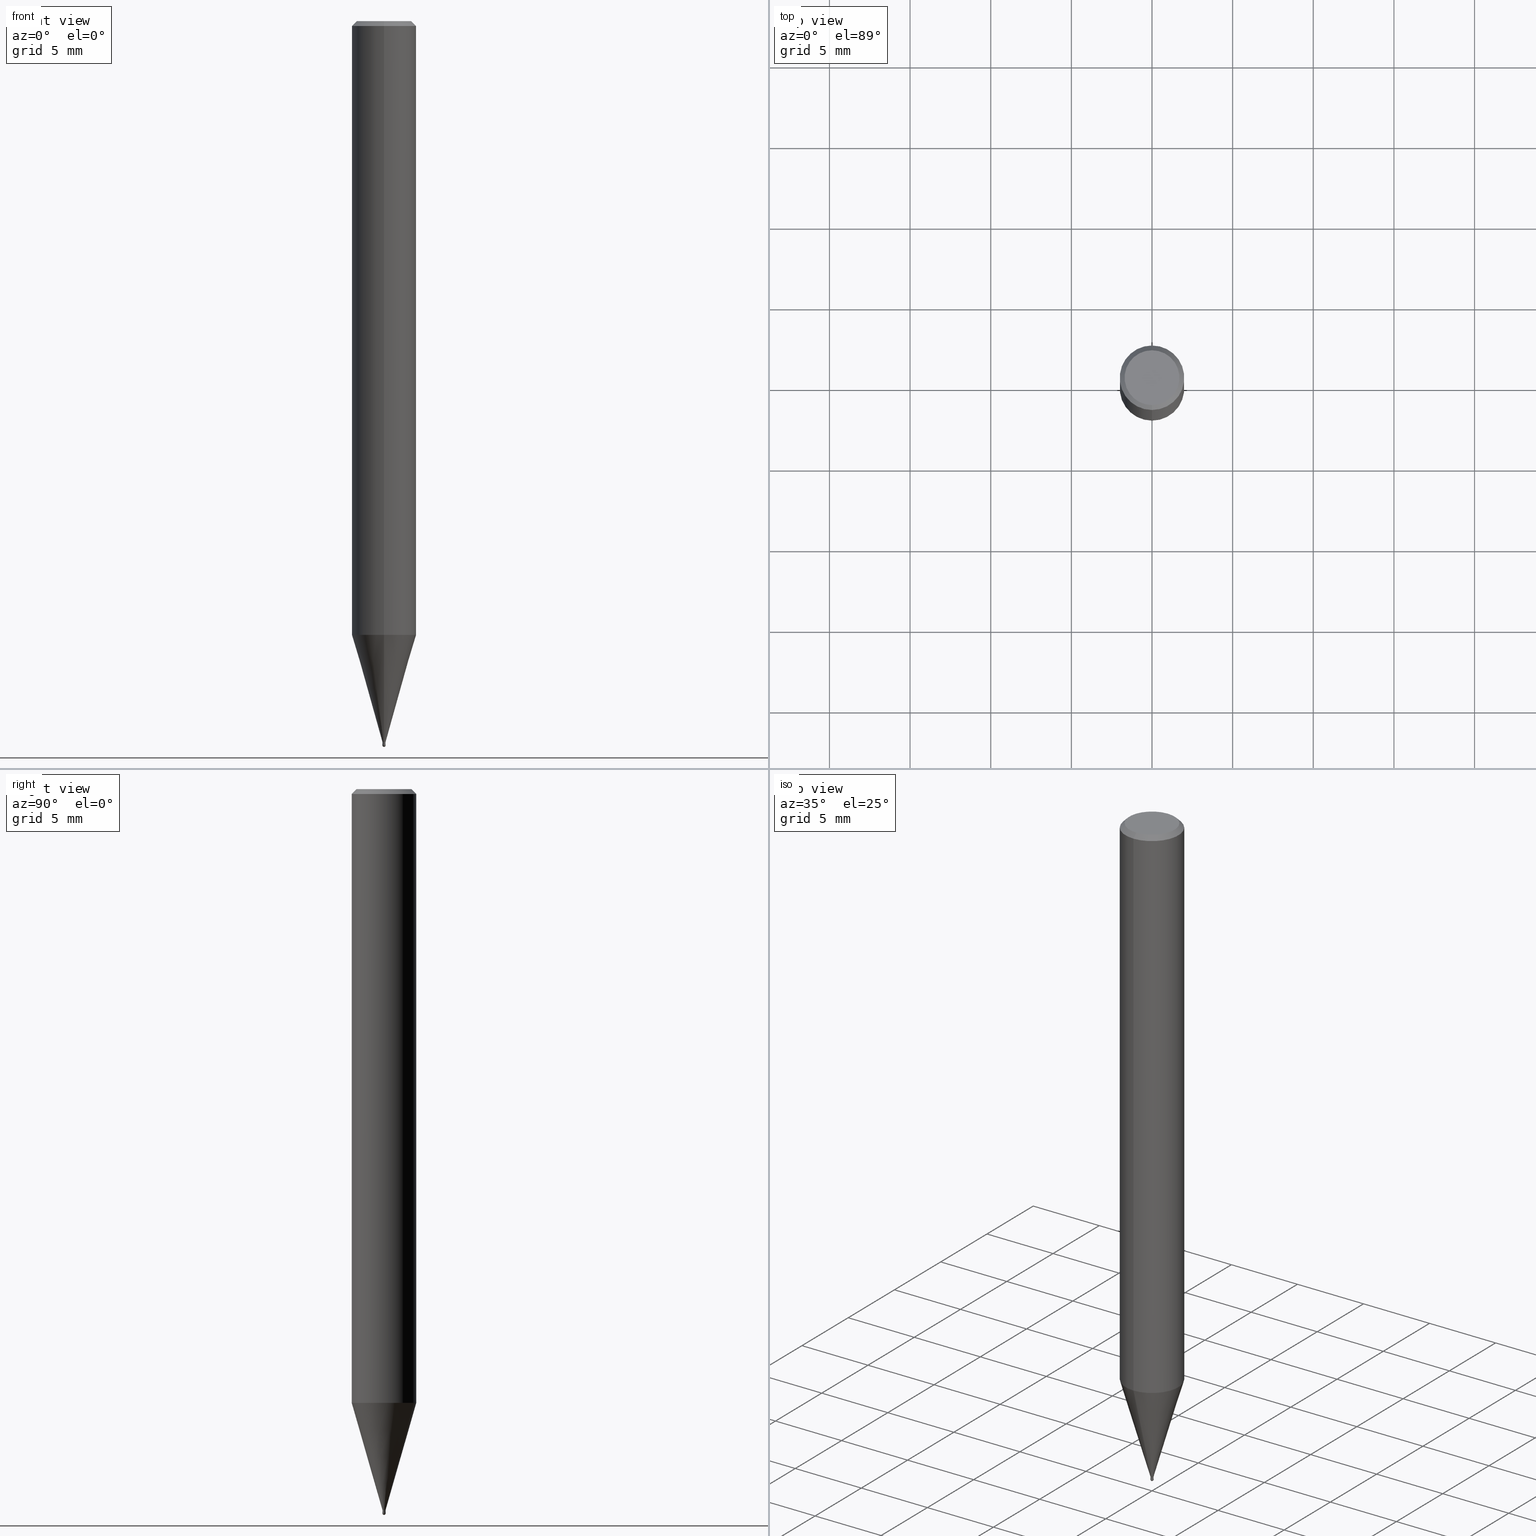
[diagram: canonical four-view strip — front | top / right | iso, engineering-drawing reading convention]
A machine part, canonical four-view strip (front | top / right | iso — engineering-drawing reading convention). The complete STEP part file that produces these views, byte-faithful:
ISO-10303-21;
HEADER;
FILE_DESCRIPTION(('no description'),'unknown implementation level');
FILE_NAME('HSLB2002-003-Huellk.stp','  ',('CIMSOURCE GmbH'),('CADClick - KiM GmbH - www.kimweb.de'),'unknown preprocess','ACIS','unknown authorization');
FILE_SCHEMA(('automotive_design'));
ENDSEC;
DATA;
#1=MECHANICAL_DESIGN_GEOMETRIC_PRESENTATION_REPRESENTATION(' ',(#14,#15,#16,#17,#18,#19,#20,#21,#22,#23,#24,#25,#26,#27,#28,#29,#30,#31,#32,#33,#34,#35,#36,#37,#38,#39,#40,#41,#42,#43,#44,#45,#46,#47,#48,#49,#50,#51,#52,#53,#54,#55,#56,#57,#58,#59,#60,#61,#62,#63,#64,#65,#66,#67,#68,#69,#70,#71,#72,#73,#74),#10);
#2=PRODUCT_DEFINITION_CONTEXT('',#75,'design');
#3=APPLICATION_PROTOCOL_DEFINITION('INTERNATIONAL STANDARD','automotive_design',1994,#75);
#4=PRODUCT_CATEGORY_RELATIONSHIP('NONE','NONE',#76,#77);
#5=SHAPE_DEFINITION_REPRESENTATION(#78,#79);
#6=PRODUCT_DEFINITION_CONTEXT('',#80,'design');
#7=APPLICATION_PROTOCOL_DEFINITION('INTERNATIONAL STANDARD','automotive_design',1994,#80);
#8=PRODUCT_CATEGORY_RELATIONSHIP('NONE','NONE',#81,#82);
#9=SHAPE_DEFINITION_REPRESENTATION(#83,#84);
#10= (GEOMETRIC_REPRESENTATION_CONTEXT(3)GLOBAL_UNCERTAINTY_ASSIGNED_CONTEXT((#87))GLOBAL_UNIT_ASSIGNED_CONTEXT((#89,#90,#91))REPRESENTATION_CONTEXT('NONE','WORKSPACE'));
#14=STYLED_ITEM('',(#93),#94);
#15=STYLED_ITEM('',(#95),#96);
#16=STYLED_ITEM('',(#97),#98);
#17=STYLED_ITEM('',(#99),#100);
#18=STYLED_ITEM('',(#101),#102);
#19=STYLED_ITEM('',(#103),#104);
#20=STYLED_ITEM('',(#105),#106);
#21=STYLED_ITEM('',(#107),#108);
#22=STYLED_ITEM('',(#109),#110);
#23=STYLED_ITEM('',(#111),#112);
#24=STYLED_ITEM('',(#113),#114);
#25=STYLED_ITEM('',(#115),#116);
#26=STYLED_ITEM('',(#117),#118);
#27=STYLED_ITEM('',(#119),#120);
#28=STYLED_ITEM('',(#121),#122);
#29=STYLED_ITEM('',(#123),#124);
#30=STYLED_ITEM('',(#125),#126);
#31=STYLED_ITEM('',(#127),#128);
#32=STYLED_ITEM('',(#129),#130);
#33=STYLED_ITEM('',(#131),#132);
#34=STYLED_ITEM('',(#133),#134);
#35=STYLED_ITEM('',(#135),#136);
#36=STYLED_ITEM('',(#137),#138);
#37=STYLED_ITEM('',(#139),#140);
#38=STYLED_ITEM('',(#141),#142);
#39=STYLED_ITEM('',(#143),#144);
#40=STYLED_ITEM('',(#145),#146);
#41=STYLED_ITEM('',(#147),#148);
#42=STYLED_ITEM('',(#149),#150);
#43=STYLED_ITEM('',(#151),#152);
#44=STYLED_ITEM('',(#153),#154);
#45=STYLED_ITEM('',(#155),#156);
#46=STYLED_ITEM('',(#157),#158);
#47=STYLED_ITEM('',(#159),#160);
#48=STYLED_ITEM('',(#161),#162);
#49=STYLED_ITEM('',(#163),#164);
#50=STYLED_ITEM('',(#165),#166);
#51=STYLED_ITEM('',(#167),#168);
#52=STYLED_ITEM('',(#169),#170);
#53=STYLED_ITEM('',(#171),#172);
#54=STYLED_ITEM('',(#173),#174);
#55=STYLED_ITEM('',(#175),#176);
#56=STYLED_ITEM('',(#177),#178);
#57=STYLED_ITEM('',(#179),#180);
#58=STYLED_ITEM('',(#181),#182);
#59=STYLED_ITEM('',(#183),#184);
#60=STYLED_ITEM('',(#185),#186);
#61=STYLED_ITEM('',(#187),#188);
#62=STYLED_ITEM('',(#189),#190);
#63=STYLED_ITEM('',(#191),#192);
#64=STYLED_ITEM('',(#193),#194);
#65=STYLED_ITEM('',(#195),#196);
#66=STYLED_ITEM('',(#197),#198);
#67=STYLED_ITEM('',(#199),#200);
#68=STYLED_ITEM('',(#201),#202);
#69=STYLED_ITEM('',(#203),#204);
#70=STYLED_ITEM('',(#205),#206);
#71=STYLED_ITEM('',(#207),#208);
#72=STYLED_ITEM('',(#209),#210);
#73=STYLED_ITEM('',(#211),#212);
#74=STYLED_ITEM('',(#213),#214);
#75=APPLICATION_CONTEXT(' ');
#76=PRODUCT_CATEGORY('part','NONE');
#77=PRODUCT_RELATED_PRODUCT_CATEGORY('detail',' ',(#215));
#78=PRODUCT_DEFINITION_SHAPE('NONE','NONE',#216);
#79=ADVANCED_BREP_SHAPE_REPRESENTATION('1',(#144,#217),#10);
#80=APPLICATION_CONTEXT(' ');
#81=PRODUCT_CATEGORY('part','NONE');
#82=PRODUCT_RELATED_PRODUCT_CATEGORY('detail',' ',(#218));
#83=PRODUCT_DEFINITION_SHAPE('NONE','NONE',#219);
#84=ADVANCED_BREP_SHAPE_REPRESENTATION('2',(#136,#220),#10);
#87=UNCERTAINTY_MEASURE_WITH_UNIT(LENGTH_MEASURE(1.0E-006),#89,'','');
#89= (CONVERSION_BASED_UNIT('MILLIMETRE',#223)LENGTH_UNIT()NAMED_UNIT(#226));
#90= (NAMED_UNIT(#228)PLANE_ANGLE_UNIT()SI_UNIT($,.RADIAN.));
#91= (NAMED_UNIT(#228)SOLID_ANGLE_UNIT()SI_UNIT($,.STERADIAN.));
#93=PRESENTATION_STYLE_ASSIGNMENT((#234));
#94=VERTEX_POINT('',#235);
#95=PRESENTATION_STYLE_ASSIGNMENT((#236));
#96=EDGE_CURVE('',#140,#98,#237,.T.);
#97=PRESENTATION_STYLE_ASSIGNMENT((#238));
#98=VERTEX_POINT('',#239);
#99=PRESENTATION_STYLE_ASSIGNMENT((#240));
#100=EDGE_CURVE('',#120,#196,#241,.T.);
#101=PRESENTATION_STYLE_ASSIGNMENT((#242));
#102=EDGE_CURVE('',#196,#150,#243,.T.);
#103=PRESENTATION_STYLE_ASSIGNMENT((#244));
#104=EDGE_CURVE('',#122,#182,#245,.T.);
#105=PRESENTATION_STYLE_ASSIGNMENT((#246));
#106=EDGE_CURVE('',#142,#124,#247,.T.);
#107=PRESENTATION_STYLE_ASSIGNMENT((#248));
#108=ADVANCED_FACE('',(#249),#250,.T.);
#109=PRESENTATION_STYLE_ASSIGNMENT((#251));
#110=EDGE_CURVE('',#150,#200,#252,.T.);
#111=PRESENTATION_STYLE_ASSIGNMENT((#253));
#112=ADVANCED_FACE('',(#254),#255,.T.);
#113=PRESENTATION_STYLE_ASSIGNMENT((#256));
#114=EDGE_CURVE('',#140,#172,#257,.T.);
#115=PRESENTATION_STYLE_ASSIGNMENT((#258));
#116=VERTEX_POINT('',#259);
#117=PRESENTATION_STYLE_ASSIGNMENT((#260));
#118=EDGE_CURVE('',#142,#208,#261,.T.);
#119=PRESENTATION_STYLE_ASSIGNMENT((#262));
#120=VERTEX_POINT('',#263);
#121=PRESENTATION_STYLE_ASSIGNMENT((#264));
#122=VERTEX_POINT('',#265);
#123=PRESENTATION_STYLE_ASSIGNMENT((#266));
#124=VERTEX_POINT('',#267);
#125=PRESENTATION_STYLE_ASSIGNMENT((#268));
#126=ADVANCED_FACE('',(#269),#270,.T.);
#127=PRESENTATION_STYLE_ASSIGNMENT((#271));
#128=EDGE_CURVE('',#208,#122,#272,.T.);
#129=PRESENTATION_STYLE_ASSIGNMENT((#273));
#130=EDGE_CURVE('',#210,#116,#274,.T.);
#131=PRESENTATION_STYLE_ASSIGNMENT((#275));
#132=ADVANCED_FACE('',(#276),#277,.T.);
#133=PRESENTATION_STYLE_ASSIGNMENT((#278));
#134=EDGE_CURVE('',#210,#140,#279,.T.);
#135=PRESENTATION_STYLE_ASSIGNMENT((#280));
#136=MANIFOLD_SOLID_BREP('2',#281);
#137=PRESENTATION_STYLE_ASSIGNMENT((#282));
#138=EDGE_CURVE('',#94,#172,#283,.T.);
#139=PRESENTATION_STYLE_ASSIGNMENT((#284));
#140=VERTEX_POINT('',#285);
#141=PRESENTATION_STYLE_ASSIGNMENT((#286));
#142=VERTEX_POINT('',#287);
#143=PRESENTATION_STYLE_ASSIGNMENT((#288));
#144=MANIFOLD_SOLID_BREP('1',#289);
#145=PRESENTATION_STYLE_ASSIGNMENT((#290));
#146=EDGE_CURVE('',#200,#150,#291,.T.);
#147=PRESENTATION_STYLE_ASSIGNMENT((#292));
#148=EDGE_CURVE('',#182,#122,#293,.T.);
#149=PRESENTATION_STYLE_ASSIGNMENT((#294));
#150=VERTEX_POINT('',#295);
#151=PRESENTATION_STYLE_ASSIGNMENT((#296));
#152=EDGE_CURVE('',#196,#120,#297,.T.);
#153=PRESENTATION_STYLE_ASSIGNMENT((#298));
#154=ADVANCED_FACE('',(#299),#300,.T.);
#155=PRESENTATION_STYLE_ASSIGNMENT((#301));
#156=EDGE_CURVE('',#94,#98,#302,.T.);
#157=PRESENTATION_STYLE_ASSIGNMENT((#303));
#158=ADVANCED_FACE('',(#304),#305,.T.);
#159=PRESENTATION_STYLE_ASSIGNMENT((#306));
#160=EDGE_CURVE('',#124,#142,#307,.T.);
#161=PRESENTATION_STYLE_ASSIGNMENT((#308));
#162=ADVANCED_FACE('',(#309,#310),#311,.T.);
#163=PRESENTATION_STYLE_ASSIGNMENT((#312));
#164=ADVANCED_FACE('',(#313),#314,.T.);
#165=PRESENTATION_STYLE_ASSIGNMENT((#315));
#166=EDGE_CURVE('',#186,#208,#316,.T.);
#167=PRESENTATION_STYLE_ASSIGNMENT((#317));
#168=EDGE_CURVE('',#116,#210,#318,.T.);
#169=PRESENTATION_STYLE_ASSIGNMENT((#319));
#170=EDGE_CURVE('',#208,#186,#320,.T.);
#171=PRESENTATION_STYLE_ASSIGNMENT((#321));
#172=VERTEX_POINT('',#322);
#173=PRESENTATION_STYLE_ASSIGNMENT((#323));
#174=EDGE_CURVE('',#200,#120,#324,.T.);
#175=PRESENTATION_STYLE_ASSIGNMENT((#325));
#176=EDGE_CURVE('',#98,#116,#326,.T.);
#177=PRESENTATION_STYLE_ASSIGNMENT((#327));
#178=ADVANCED_FACE('',(#328),#329,.T.);
#179=PRESENTATION_STYLE_ASSIGNMENT((#330));
#180=EDGE_CURVE('',#200,#150,#331,.T.);
#181=PRESENTATION_STYLE_ASSIGNMENT((#332));
#182=VERTEX_POINT('',#333);
#183=PRESENTATION_STYLE_ASSIGNMENT((#334));
#184=EDGE_CURVE('',#186,#124,#335,.T.);
#185=PRESENTATION_STYLE_ASSIGNMENT((#336));
#186=VERTEX_POINT('',#337);
#187=PRESENTATION_STYLE_ASSIGNMENT((#338));
#188=EDGE_CURVE('',#98,#140,#339,.T.);
#189=PRESENTATION_STYLE_ASSIGNMENT((#340));
#190=ADVANCED_FACE('',(#341),#342,.T.);
#191=PRESENTATION_STYLE_ASSIGNMENT((#343));
#192=ADVANCED_FACE('',(#344),#345,.T.);
#193=PRESENTATION_STYLE_ASSIGNMENT((#346));
#194=EDGE_CURVE('',#172,#94,#347,.T.);
#195=PRESENTATION_STYLE_ASSIGNMENT((#348));
#196=VERTEX_POINT('',#349);
#197=PRESENTATION_STYLE_ASSIGNMENT((#350));
#198=EDGE_CURVE('',#182,#186,#351,.T.);
#199=PRESENTATION_STYLE_ASSIGNMENT((#352));
#200=VERTEX_POINT('',#353);
#201=PRESENTATION_STYLE_ASSIGNMENT((#354));
#202=ADVANCED_FACE('',(#355),#356,.T.);
#203=PRESENTATION_STYLE_ASSIGNMENT((#357));
#204=ADVANCED_FACE('',(#358),#359,.T.);
#205=PRESENTATION_STYLE_ASSIGNMENT((#360));
#206=ADVANCED_FACE('',(#361),#362,.T.);
#207=PRESENTATION_STYLE_ASSIGNMENT((#363));
#208=VERTEX_POINT('',#364);
#209=PRESENTATION_STYLE_ASSIGNMENT((#365));
#210=VERTEX_POINT('',#366);
#211=PRESENTATION_STYLE_ASSIGNMENT((#367));
#212=ADVANCED_FACE('',(#368),#369,.T.);
#213=PRESENTATION_STYLE_ASSIGNMENT((#370));
#214=ADVANCED_FACE('',(#371),#372,.T.);
#215=PRODUCT('1','1','PART-1-DESC',(#373));
#216=PRODUCT_DEFINITION('NONE','NONE',#374,#2);
#217=AXIS2_PLACEMENT_3D('',#375,#376,#377);
#218=PRODUCT('2','2','PART-2-DESC',(#378));
#219=PRODUCT_DEFINITION('NONE','NONE',#379,#6);
#220=AXIS2_PLACEMENT_3D('',#380,#381,#382);
#223=LENGTH_MEASURE_WITH_UNIT(LENGTH_MEASURE(1.0),#383);
#226=DIMENSIONAL_EXPONENTS(1.0,0.0,0.0,0.0,0.0,0.0,0.0);
#228=DIMENSIONAL_EXPONENTS(0.0,0.0,0.0,0.0,0.0,0.0,0.0);
#234=POINT_STYLE(' ',#384,POSITIVE_LENGTH_MEASURE(1.0E-006),#385);
#235=CARTESIAN_POINT('',(2.44921270764475E-016,-2.0,-38.056));
#236=CURVE_STYLE('',#386,POSITIVE_LENGTH_MEASURE(1.0E-006),#387);
#237=CIRCLE('',#388,2.0);
#238=POINT_STYLE(' ',#389,POSITIVE_LENGTH_MEASURE(1.0E-006),#390);
#239=CARTESIAN_POINT('',(2.44921270764475E-016,-2.0,-0.299999999999997));
#240=CURVE_STYLE('',#391,POSITIVE_LENGTH_MEASURE(1.0E-006),#392);
#241=CIRCLE('',#393,0.0999);
#242=CURVE_STYLE('',#394,POSITIVE_LENGTH_MEASURE(1.0E-006),#395);
#243=LINE('',#396,#397);
#244=CURVE_STYLE('',#398,POSITIVE_LENGTH_MEASURE(1.0E-006),#399);
#245=CIRCLE('',#400,0.09495);
#246=CURVE_STYLE('',#401,POSITIVE_LENGTH_MEASURE(1.0E-006),#402);
#247=CIRCLE('',#403,1.99995);
#248=SURFACE_STYLE_USAGE(.BOTH.,#404);
#249=FACE_OUTER_BOUND('',#405,.T.);
#250=CONICAL_SURFACE('',#406,1.04745,0.279233718115795);
#251=CURVE_STYLE('',#407,POSITIVE_LENGTH_MEASURE(1.0E-006),#408);
#252=CIRCLE('',#409,0.1);
#253=SURFACE_STYLE_USAGE(.BOTH.,#410);
#254=FACE_OUTER_BOUND('',#411,.T.);
#255=CONICAL_SURFACE('',#412,0.09995,0.00166666512345941);
#256=CURVE_STYLE('',#413,POSITIVE_LENGTH_MEASURE(1.0E-006),#414);
#257=LINE('',#415,#416);
#258=POINT_STYLE(' ',#417,POSITIVE_LENGTH_MEASURE(1.0E-006),#418);
#259=CARTESIAN_POINT('',(2.08183080149804E-016,-1.7,0.0));
#260=CURVE_STYLE('',#419,POSITIVE_LENGTH_MEASURE(1.0E-006),#420);
#261=LINE('',#421,#422);
#262=POINT_STYLE(' ',#423,POSITIVE_LENGTH_MEASURE(1.0E-006),#424);
#263=CARTESIAN_POINT('',(1.22338174746855E-017,-0.0999,-44.84));
#264=POINT_STYLE(' ',#425,POSITIVE_LENGTH_MEASURE(1.0E-006),#426);
#265=CARTESIAN_POINT('',(0.0,0.09495,-44.84));
#266=POINT_STYLE(' ',#427,POSITIVE_LENGTH_MEASURE(1.0E-006),#428);
#267=CARTESIAN_POINT('',(2.44915147732706E-016,-1.99995,-38.056));
#268=SURFACE_STYLE_USAGE(.BOTH.,#429);
#269=FACE_OUTER_BOUND('',#430,.T.);
#270=CYLINDRICAL_SURFACE('',#431,2.0);
#271=CURVE_STYLE('',#432,POSITIVE_LENGTH_MEASURE(1.0E-006),#433);
#272=LINE('',#434,#435);
#273=CURVE_STYLE('',#436,POSITIVE_LENGTH_MEASURE(1.0E-006),#437);
#274=CIRCLE('',#438,1.7);
#275=SURFACE_STYLE_USAGE(.BOTH.,#439);
#276=FACE_OUTER_BOUND('',#440,.T.);
#277=CONICAL_SURFACE('',#441,0.09995,0.00166666512345941);
#278=CURVE_STYLE('',#442,POSITIVE_LENGTH_MEASURE(1.0E-006),#443);
#279=LINE('',#444,#445);
#280=SURFACE_STYLE_USAGE(.BOTH.,#446);
#281=CLOSED_SHELL('',(#158,#132,#214,#112,#178));
#282=CURVE_STYLE('',#447,POSITIVE_LENGTH_MEASURE(1.0E-006),#448);
#283=CIRCLE('',#449,2.0);
#284=POINT_STYLE(' ',#450,POSITIVE_LENGTH_MEASURE(1.0E-006),#451);
#285=CARTESIAN_POINT('',(0.0,2.0,-0.299999999999997));
#286=POINT_STYLE(' ',#452,POSITIVE_LENGTH_MEASURE(1.0E-006),#453);
#287=CARTESIAN_POINT('',(0.0,1.99995,-38.056));
#288=SURFACE_STYLE_USAGE(.BOTH.,#454);
#289=CLOSED_SHELL('',(#154,#202,#206,#212,#162,#192,#164,#126,#108,#190,#204));
#290=CURVE_STYLE('',#455,POSITIVE_LENGTH_MEASURE(1.0E-006),#456);
#291=CIRCLE('',#457,0.1);
#292=CURVE_STYLE('',#458,POSITIVE_LENGTH_MEASURE(1.0E-006),#459);
#293=CIRCLE('',#460,0.09495);
#294=POINT_STYLE(' ',#461,POSITIVE_LENGTH_MEASURE(1.0E-006),#462);
#295=CARTESIAN_POINT('',(0.0,0.1,-44.9));
#296=CURVE_STYLE('',#463,POSITIVE_LENGTH_MEASURE(1.0E-006),#464);
#297=CIRCLE('',#465,0.0999);
#298=SURFACE_STYLE_USAGE(.BOTH.,#466);
#299=FACE_OUTER_BOUND('',#467,.T.);
#300=CYLINDRICAL_SURFACE('',#468,0.09495);
#301=CURVE_STYLE('',#469,POSITIVE_LENGTH_MEASURE(1.0E-006),#470);
#302=LINE('',#471,#472);
#303=SURFACE_STYLE_USAGE(.BOTH.,#473);
#304=FACE_OUTER_BOUND('',#474,.T.);
#305=SPHERICAL_SURFACE('',#475,0.1);
#306=CURVE_STYLE('',#476,POSITIVE_LENGTH_MEASURE(1.0E-006),#477);
#307=CIRCLE('',#478,1.99995);
#308=SURFACE_STYLE_USAGE(.BOTH.,#479);
#309=FACE_OUTER_BOUND('',#480,.T.);
#310=FACE_BOUND('',#481,.T.);
#311=PLANE('',#482);
#312=SURFACE_STYLE_USAGE(.BOTH.,#483);
#313=FACE_OUTER_BOUND('',#484,.T.);
#314=CONICAL_SURFACE('',#485,1.85,0.785398163397453);
#315=CURVE_STYLE('',#486,POSITIVE_LENGTH_MEASURE(1.0E-006),#487);
#316=CIRCLE('',#488,0.09495);
#317=CURVE_STYLE('',#489,POSITIVE_LENGTH_MEASURE(1.0E-006),#490);
#318=CIRCLE('',#491,1.7);
#319=CURVE_STYLE('',#492,POSITIVE_LENGTH_MEASURE(1.0E-006),#493);
#320=CIRCLE('',#494,0.09495);
#321=POINT_STYLE(' ',#495,POSITIVE_LENGTH_MEASURE(1.0E-006),#496);
#322=CARTESIAN_POINT('',(0.0,2.0,-38.056));
#323=CURVE_STYLE('',#497,POSITIVE_LENGTH_MEASURE(1.0E-006),#498);
#324=LINE('',#499,#500);
#325=CURVE_STYLE('',#501,POSITIVE_LENGTH_MEASURE(1.0E-006),#502);
#326=LINE('',#503,#504);
#327=SURFACE_STYLE_USAGE(.BOTH.,#505);
#328=FACE_OUTER_BOUND('',#506,.T.);
#329=SPHERICAL_SURFACE('',#507,0.1);
#330=CURVE_STYLE('',#508,POSITIVE_LENGTH_MEASURE(1.0E-006),#509);
#331=CIRCLE('',#510,0.1);
#332=POINT_STYLE(' ',#511,POSITIVE_LENGTH_MEASURE(1.0E-006),#512);
#333=CARTESIAN_POINT('',(1.16276373295435E-017,-0.09495,-44.84));
#334=CURVE_STYLE('',#513,POSITIVE_LENGTH_MEASURE(1.0E-006),#514);
#335=LINE('',#515,#516);
#336=POINT_STYLE(' ',#517,POSITIVE_LENGTH_MEASURE(1.0E-006),#518);
#337=CARTESIAN_POINT('',(1.16276373295435E-017,-0.09495,-44.7));
#338=CURVE_STYLE('',#519,POSITIVE_LENGTH_MEASURE(1.0E-006),#520);
#339=CIRCLE('',#521,2.0);
#340=SURFACE_STYLE_USAGE(.BOTH.,#522);
#341=FACE_OUTER_BOUND('',#523,.T.);
#342=CYLINDRICAL_SURFACE('',#524,0.09495);
#343=SURFACE_STYLE_USAGE(.BOTH.,#525);
#344=FACE_OUTER_BOUND('',#526,.T.);
#345=PLANE('',#527);
#346=CURVE_STYLE('',#528,POSITIVE_LENGTH_MEASURE(1.0E-006),#529);
#347=CIRCLE('',#530,2.0);
#348=POINT_STYLE(' ',#531,POSITIVE_LENGTH_MEASURE(1.0E-006),#532);
#349=CARTESIAN_POINT('',(0.0,0.0999,-44.84));
#350=CURVE_STYLE('',#533,POSITIVE_LENGTH_MEASURE(1.0E-006),#534);
#351=LINE('',#535,#536);
#352=POINT_STYLE(' ',#537,POSITIVE_LENGTH_MEASURE(1.0E-006),#538);
#353=CARTESIAN_POINT('',(1.22460635382238E-017,-0.1,-44.9));
#354=SURFACE_STYLE_USAGE(.BOTH.,#539);
#355=FACE_OUTER_BOUND('',#540,.T.);
#356=CONICAL_SURFACE('',#541,1.04745,0.279233718115795);
#357=SURFACE_STYLE_USAGE(.BOTH.,#542);
#358=FACE_OUTER_BOUND('',#543,.T.);
#359=PLANE('',#544);
#360=SURFACE_STYLE_USAGE(.BOTH.,#545);
#361=FACE_OUTER_BOUND('',#546,.T.);
#362=CYLINDRICAL_SURFACE('',#547,2.0);
#363=POINT_STYLE(' ',#548,POSITIVE_LENGTH_MEASURE(1.0E-006),#549);
#364=CARTESIAN_POINT('',(0.0,0.09495,-44.7));
#365=POINT_STYLE(' ',#550,POSITIVE_LENGTH_MEASURE(1.0E-006),#551);
#366=CARTESIAN_POINT('',(0.0,1.7,0.0));
#367=SURFACE_STYLE_USAGE(.BOTH.,#552);
#368=FACE_OUTER_BOUND('',#553,.T.);
#369=CONICAL_SURFACE('',#554,1.85,0.785398163397453);
#370=SURFACE_STYLE_USAGE(.BOTH.,#555);
#371=FACE_OUTER_BOUND('',#556,.T.);
#372=PLANE('',#557);
#373=PRODUCT_CONTEXT('',#75,'mechanical');
#374=PRODUCT_DEFINITION_FORMATION_WITH_SPECIFIED_SOURCE(' ','NONE',#215,.NOT_KNOWN.);
#375=CARTESIAN_POINT('',(0.0,0.0,0.0));
#376=DIRECTION('',(0.0,0.0,1.0));
#377=DIRECTION('',(1.0,0.0,0.0));
#378=PRODUCT_CONTEXT('',#80,'mechanical');
#379=PRODUCT_DEFINITION_FORMATION_WITH_SPECIFIED_SOURCE(' ','NONE',#218,.NOT_KNOWN.);
#380=CARTESIAN_POINT('',(0.0,0.0,0.0));
#381=DIRECTION('',(0.0,0.0,1.0));
#382=DIRECTION('',(1.0,0.0,0.0));
#383= (NAMED_UNIT(#226)LENGTH_UNIT()SI_UNIT(.MILLI.,.METRE.));
#384=PRE_DEFINED_MARKER('');
#385=COLOUR_RGB('',0.498039215803146,0.498039215803146,0.498039215803146);
#386=DRAUGHTING_PRE_DEFINED_CURVE_FONT('continuous');
#387=COLOUR_RGB('',0.498039215803146,0.498039215803146,0.498039215803146);
#388=AXIS2_PLACEMENT_3D('',#559,#560,#561);
#389=PRE_DEFINED_MARKER('');
#390=COLOUR_RGB('',0.498039215803146,0.498039215803146,0.498039215803146);
#391=DRAUGHTING_PRE_DEFINED_CURVE_FONT('continuous');
#392=COLOUR_RGB('',0.800000011920929,0.800000011920929,0.800000011920929);
#393=AXIS2_PLACEMENT_3D('',#562,#563,#564);
#394=DRAUGHTING_PRE_DEFINED_CURVE_FONT('continuous');
#395=COLOUR_RGB('',0.800000011920929,0.800000011920929,0.800000011920929);
#396=CARTESIAN_POINT('',(-1.22399405064547E-017,0.09995,-44.87));
#397=VECTOR('',#565,1.0);
#398=DRAUGHTING_PRE_DEFINED_CURVE_FONT('continuous');
#399=COLOUR_RGB('',0.498039215803146,0.498039215803146,0.498039215803146);
#400=AXIS2_PLACEMENT_3D('',#566,#567,#568);
#401=DRAUGHTING_PRE_DEFINED_CURVE_FONT('continuous');
#402=COLOUR_RGB('',0.498039215803146,0.498039215803146,0.498039215803146);
#403=AXIS2_PLACEMENT_3D('',#569,#570,#571);
#404=SURFACE_SIDE_STYLE('',(#572));
#405=EDGE_LOOP('',(#573,#574,#575,#576));
#406=AXIS2_PLACEMENT_3D('',#577,#578,#579);
#407=DRAUGHTING_PRE_DEFINED_CURVE_FONT('continuous');
#408=COLOUR_RGB('',0.800000011920929,0.800000011920929,0.800000011920929);
#409=AXIS2_PLACEMENT_3D('',#580,#581,#582);
#410=SURFACE_SIDE_STYLE('',(#583));
#411=EDGE_LOOP('',(#584,#585,#586,#587));
#412=AXIS2_PLACEMENT_3D('',#588,#589,#590);
#413=DRAUGHTING_PRE_DEFINED_CURVE_FONT('continuous');
#414=COLOUR_RGB('',0.498039215803146,0.498039215803146,0.498039215803146);
#415=CARTESIAN_POINT('',(-2.44921270764475E-016,2.0,-19.178));
#416=VECTOR('',#591,1.0);
#417=PRE_DEFINED_MARKER('');
#418=COLOUR_RGB('',0.498039215803146,0.498039215803146,0.498039215803146);
#419=DRAUGHTING_PRE_DEFINED_CURVE_FONT('continuous');
#420=COLOUR_RGB('',0.498039215803146,0.498039215803146,0.498039215803146);
#421=CARTESIAN_POINT('',(-1.28271392531125E-016,1.04745,-41.378));
#422=VECTOR('',#592,1.0);
#423=PRE_DEFINED_MARKER('');
#424=COLOUR_RGB('',0.800000011920929,0.800000011920929,0.800000011920929);
#425=PRE_DEFINED_MARKER('');
#426=COLOUR_RGB('',0.498039215803146,0.498039215803146,0.498039215803146);
#427=PRE_DEFINED_MARKER('');
#428=COLOUR_RGB('',0.498039215803146,0.498039215803146,0.498039215803146);
#429=SURFACE_SIDE_STYLE('',(#593));
#430=EDGE_LOOP('',(#594,#595,#596,#597));
#431=AXIS2_PLACEMENT_3D('',#598,#599,#600);
#432=DRAUGHTING_PRE_DEFINED_CURVE_FONT('continuous');
#433=COLOUR_RGB('',0.498039215803146,0.498039215803146,0.498039215803146);
#434=CARTESIAN_POINT('',(-1.16276373295435E-017,0.09495,-44.77));
#435=VECTOR('',#601,1.0);
#436=DRAUGHTING_PRE_DEFINED_CURVE_FONT('continuous');
#437=COLOUR_RGB('',0.498039215803146,0.498039215803146,0.498039215803146);
#438=AXIS2_PLACEMENT_3D('',#602,#603,#604);
#439=SURFACE_SIDE_STYLE('',(#605));
#440=EDGE_LOOP('',(#606,#607,#608,#609));
#441=AXIS2_PLACEMENT_3D('',#610,#611,#612);
#442=DRAUGHTING_PRE_DEFINED_CURVE_FONT('continuous');
#443=COLOUR_RGB('',0.498039215803146,0.498039215803146,0.498039215803146);
#444=CARTESIAN_POINT('',(-2.2655217545714E-016,1.85,-0.149999999999999));
#445=VECTOR('',#613,1.0);
#446=SURFACE_SIDE_STYLE('',(#614));
#447=DRAUGHTING_PRE_DEFINED_CURVE_FONT('continuous');
#448=COLOUR_RGB('',0.498039215803146,0.498039215803146,0.498039215803146);
#449=AXIS2_PLACEMENT_3D('',#615,#616,#617);
#450=PRE_DEFINED_MARKER('');
#451=COLOUR_RGB('',0.498039215803146,0.498039215803146,0.498039215803146);
#452=PRE_DEFINED_MARKER('');
#453=COLOUR_RGB('',0.498039215803146,0.498039215803146,0.498039215803146);
#454=SURFACE_SIDE_STYLE('',(#618));
#455=DRAUGHTING_PRE_DEFINED_CURVE_FONT('continuous');
#456=COLOUR_RGB('',0.800000011920929,0.800000011920929,0.800000011920929);
#457=AXIS2_PLACEMENT_3D('',#619,#620,#621);
#458=DRAUGHTING_PRE_DEFINED_CURVE_FONT('continuous');
#459=COLOUR_RGB('',0.498039215803146,0.498039215803146,0.498039215803146);
#460=AXIS2_PLACEMENT_3D('',#622,#623,#624);
#461=PRE_DEFINED_MARKER('');
#462=COLOUR_RGB('',0.800000011920929,0.800000011920929,0.800000011920929);
#463=DRAUGHTING_PRE_DEFINED_CURVE_FONT('continuous');
#464=COLOUR_RGB('',0.800000011920929,0.800000011920929,0.800000011920929);
#465=AXIS2_PLACEMENT_3D('',#625,#626,#627);
#466=SURFACE_SIDE_STYLE('',(#628));
#467=EDGE_LOOP('',(#629,#630,#631,#632));
#468=AXIS2_PLACEMENT_3D('',#633,#634,#635);
#469=DRAUGHTING_PRE_DEFINED_CURVE_FONT('continuous');
#470=COLOUR_RGB('',0.498039215803146,0.498039215803146,0.498039215803146);
#471=CARTESIAN_POINT('',(2.44921270764475E-016,-2.0,-19.178));
#472=VECTOR('',#636,1.0);
#473=SURFACE_SIDE_STYLE('',(#637));
#474=EDGE_LOOP('',(#638,#639));
#475=AXIS2_PLACEMENT_3D('',#640,#641,#642);
#476=DRAUGHTING_PRE_DEFINED_CURVE_FONT('continuous');
#477=COLOUR_RGB('',0.498039215803146,0.498039215803146,0.498039215803146);
#478=AXIS2_PLACEMENT_3D('',#643,#644,#645);
#479=SURFACE_SIDE_STYLE('',(#646));
#480=EDGE_LOOP('',(#647,#648));
#481=EDGE_LOOP('',(#649,#650));
#482=AXIS2_PLACEMENT_3D('',#651,#652,#653);
#483=SURFACE_SIDE_STYLE('',(#654));
#484=EDGE_LOOP('',(#655,#656,#657,#658));
#485=AXIS2_PLACEMENT_3D('',#659,#660,#661);
#486=DRAUGHTING_PRE_DEFINED_CURVE_FONT('continuous');
#487=COLOUR_RGB('',0.498039215803146,0.498039215803146,0.498039215803146);
#488=AXIS2_PLACEMENT_3D('',#662,#663,#664);
#489=DRAUGHTING_PRE_DEFINED_CURVE_FONT('continuous');
#490=COLOUR_RGB('',0.498039215803146,0.498039215803146,0.498039215803146);
#491=AXIS2_PLACEMENT_3D('',#665,#666,#667);
#492=DRAUGHTING_PRE_DEFINED_CURVE_FONT('continuous');
#493=COLOUR_RGB('',0.498039215803146,0.498039215803146,0.498039215803146);
#494=AXIS2_PLACEMENT_3D('',#668,#669,#670);
#495=PRE_DEFINED_MARKER('');
#496=COLOUR_RGB('',0.498039215803146,0.498039215803146,0.498039215803146);
#497=DRAUGHTING_PRE_DEFINED_CURVE_FONT('continuous');
#498=COLOUR_RGB('',0.800000011920929,0.800000011920929,0.800000011920929);
#499=CARTESIAN_POINT('',(1.22399405064547E-017,-0.09995,-44.87));
#500=VECTOR('',#671,1.0);
#501=DRAUGHTING_PRE_DEFINED_CURVE_FONT('continuous');
#502=COLOUR_RGB('',0.498039215803146,0.498039215803146,0.498039215803146);
#503=CARTESIAN_POINT('',(2.2655217545714E-016,-1.85,-0.149999999999999));
#504=VECTOR('',#672,1.0);
#505=SURFACE_SIDE_STYLE('',(#673));
#506=EDGE_LOOP('',(#674,#675));
#507=AXIS2_PLACEMENT_3D('',#676,#677,#678);
#508=DRAUGHTING_PRE_DEFINED_CURVE_FONT('continuous');
#509=COLOUR_RGB('',0.800000011920929,0.800000011920929,0.800000011920929);
#510=AXIS2_PLACEMENT_3D('',#679,#680,#681);
#511=PRE_DEFINED_MARKER('');
#512=COLOUR_RGB('',0.498039215803146,0.498039215803146,0.498039215803146);
#513=DRAUGHTING_PRE_DEFINED_CURVE_FONT('continuous');
#514=COLOUR_RGB('',0.498039215803146,0.498039215803146,0.498039215803146);
#515=CARTESIAN_POINT('',(1.28271392531125E-016,-1.04745,-41.378));
#516=VECTOR('',#682,1.0);
#517=PRE_DEFINED_MARKER('');
#518=COLOUR_RGB('',0.498039215803146,0.498039215803146,0.498039215803146);
#519=DRAUGHTING_PRE_DEFINED_CURVE_FONT('continuous');
#520=COLOUR_RGB('',0.498039215803146,0.498039215803146,0.498039215803146);
#521=AXIS2_PLACEMENT_3D('',#683,#684,#685);
#522=SURFACE_SIDE_STYLE('',(#686));
#523=EDGE_LOOP('',(#687,#688,#689,#690));
#524=AXIS2_PLACEMENT_3D('',#691,#692,#693);
#525=SURFACE_SIDE_STYLE('',(#694));
#526=EDGE_LOOP('',(#695,#696));
#527=AXIS2_PLACEMENT_3D('',#697,#698,#699);
#528=DRAUGHTING_PRE_DEFINED_CURVE_FONT('continuous');
#529=COLOUR_RGB('',0.498039215803146,0.498039215803146,0.498039215803146);
#530=AXIS2_PLACEMENT_3D('',#700,#701,#702);
#531=PRE_DEFINED_MARKER('');
#532=COLOUR_RGB('',0.800000011920929,0.800000011920929,0.800000011920929);
#533=DRAUGHTING_PRE_DEFINED_CURVE_FONT('continuous');
#534=COLOUR_RGB('',0.498039215803146,0.498039215803146,0.498039215803146);
#535=CARTESIAN_POINT('',(1.16276373295435E-017,-0.09495,-44.77));
#536=VECTOR('',#703,1.0);
#537=PRE_DEFINED_MARKER('');
#538=COLOUR_RGB('',0.800000011920929,0.800000011920929,0.800000011920929);
#539=SURFACE_SIDE_STYLE('',(#704));
#540=EDGE_LOOP('',(#705,#706,#707,#708));
#541=AXIS2_PLACEMENT_3D('',#709,#710,#711);
#542=SURFACE_SIDE_STYLE('',(#712));
#543=EDGE_LOOP('',(#713,#714));
#544=AXIS2_PLACEMENT_3D('',#715,#716,#717);
#545=SURFACE_SIDE_STYLE('',(#718));
#546=EDGE_LOOP('',(#719,#720,#721,#722));
#547=AXIS2_PLACEMENT_3D('',#723,#724,#725);
#548=PRE_DEFINED_MARKER('');
#549=COLOUR_RGB('',0.498039215803146,0.498039215803146,0.498039215803146);
#550=PRE_DEFINED_MARKER('');
#551=COLOUR_RGB('',0.498039215803146,0.498039215803146,0.498039215803146);
#552=SURFACE_SIDE_STYLE('',(#726));
#553=EDGE_LOOP('',(#727,#728,#729,#730));
#554=AXIS2_PLACEMENT_3D('',#731,#732,#733);
#555=SURFACE_SIDE_STYLE('',(#734));
#556=EDGE_LOOP('',(#735,#736));
#557=AXIS2_PLACEMENT_3D('',#737,#738,#739);
#559=CARTESIAN_POINT('',(0.0,0.0,-0.299999999999997));
#560=DIRECTION('',(0.0,0.0,-1.0));
#561=DIRECTION('',(0.0,1.0,0.0));
#562=CARTESIAN_POINT('',(0.0,0.0,-44.84));
#563=DIRECTION('',(0.0,0.0,-1.0));
#564=DIRECTION('',(0.0,1.0,0.0));
#565=DIRECTION('',(-2.041007754973E-019,0.00166666435185672,-0.999998611114005));
#566=CARTESIAN_POINT('',(0.0,0.0,-44.84));
#567=DIRECTION('',(0.0,0.0,-1.0));
#568=DIRECTION('',(0.0,1.0,0.0));
#569=CARTESIAN_POINT('',(0.0,0.0,-38.056));
#570=DIRECTION('',(0.0,0.0,-1.0));
#571=DIRECTION('',(0.0,1.0,0.0));
#572=SURFACE_STYLE_FILL_AREA(#740);
#573=ORIENTED_EDGE('',*,*,#118,.T.);
#574=ORIENTED_EDGE('',*,*,#166,.F.);
#575=ORIENTED_EDGE('',*,*,#184,.T.);
#576=ORIENTED_EDGE('',*,*,#160,.T.);
#577=CARTESIAN_POINT('',(0.0,0.0,-41.378));
#578=DIRECTION('',(-0.0,-0.0,1.0));
#579=DIRECTION('',(0.0,1.0,0.0));
#580=CARTESIAN_POINT('',(0.0,0.0,-44.9));
#581=DIRECTION('',(0.0,0.0,-1.0));
#582=DIRECTION('',(0.0,1.0,0.0));
#583=SURFACE_STYLE_FILL_AREA(#741);
#584=ORIENTED_EDGE('',*,*,#102,.T.);
#585=ORIENTED_EDGE('',*,*,#146,.F.);
#586=ORIENTED_EDGE('',*,*,#174,.T.);
#587=ORIENTED_EDGE('',*,*,#100,.T.);
#588=CARTESIAN_POINT('',(0.0,0.0,-44.87));
#589=DIRECTION('',(0.0,-0.0,-1.0));
#590=DIRECTION('',(0.0,1.0,0.0));
#591=DIRECTION('',(0.0,0.0,-1.0));
#592=DIRECTION('',(3.3752493554022E-017,-0.275619128127744,-0.961266922457078));
#593=SURFACE_STYLE_FILL_AREA(#742);
#594=ORIENTED_EDGE('',*,*,#114,.T.);
#595=ORIENTED_EDGE('',*,*,#138,.F.);
#596=ORIENTED_EDGE('',*,*,#156,.T.);
#597=ORIENTED_EDGE('',*,*,#188,.T.);
#598=CARTESIAN_POINT('',(0.0,0.0,-19.178));
#599=DIRECTION('',(-0.0,-0.0,1.0));
#600=DIRECTION('',(0.0,1.0,0.0));
#601=DIRECTION('',(0.0,0.0,-1.0));
#602=CARTESIAN_POINT('',(0.0,0.0,0.0));
#603=DIRECTION('',(0.0,0.0,-1.0));
#604=DIRECTION('',(0.0,1.0,0.0));
#605=SURFACE_STYLE_FILL_AREA(#743);
#606=ORIENTED_EDGE('',*,*,#102,.F.);
#607=ORIENTED_EDGE('',*,*,#152,.T.);
#608=ORIENTED_EDGE('',*,*,#174,.F.);
#609=ORIENTED_EDGE('',*,*,#110,.F.);
#610=CARTESIAN_POINT('',(0.0,0.0,-44.87));
#611=DIRECTION('',(0.0,-0.0,-1.0));
#612=DIRECTION('',(0.0,1.0,0.0));
#613=DIRECTION('',(-8.6592745707194E-017,0.707106781186551,-0.707106781186544));
#614=SURFACE_STYLE_FILL_AREA(#744);
#615=CARTESIAN_POINT('',(0.0,0.0,-38.056));
#616=DIRECTION('',(0.0,0.0,-1.0));
#617=DIRECTION('',(0.0,1.0,0.0));
#618=SURFACE_STYLE_FILL_AREA(#745);
#619=CARTESIAN_POINT('',(0.0,0.0,-44.9));
#620=DIRECTION('',(0.0,0.0,-1.0));
#621=DIRECTION('',(0.0,1.0,0.0));
#622=CARTESIAN_POINT('',(0.0,0.0,-44.84));
#623=DIRECTION('',(0.0,0.0,-1.0));
#624=DIRECTION('',(0.0,1.0,0.0));
#625=CARTESIAN_POINT('',(0.0,0.0,-44.84));
#626=DIRECTION('',(0.0,0.0,-1.0));
#627=DIRECTION('',(0.0,1.0,0.0));
#628=SURFACE_STYLE_FILL_AREA(#746);
#629=ORIENTED_EDGE('',*,*,#128,.F.);
#630=ORIENTED_EDGE('',*,*,#170,.T.);
#631=ORIENTED_EDGE('',*,*,#198,.F.);
#632=ORIENTED_EDGE('',*,*,#104,.F.);
#633=CARTESIAN_POINT('',(0.0,0.0,-44.77));
#634=DIRECTION('',(-0.0,-0.0,1.0));
#635=DIRECTION('',(0.0,1.0,0.0));
#636=DIRECTION('',(-0.0,-0.0,1.0));
#637=SURFACE_STYLE_FILL_AREA(#747);
#638=ORIENTED_EDGE('',*,*,#180,.F.);
#639=ORIENTED_EDGE('',*,*,#146,.T.);
#640=CARTESIAN_POINT('',(0.0,0.0,-44.9));
#641=DIRECTION('',(0.0,1.0,0.0));
#642=DIRECTION('',(0.0,0.0,-1.0));
#643=CARTESIAN_POINT('',(0.0,0.0,-38.056));
#644=DIRECTION('',(0.0,0.0,-1.0));
#645=DIRECTION('',(0.0,1.0,0.0));
#646=SURFACE_STYLE_FILL_AREA(#748);
#647=ORIENTED_EDGE('',*,*,#194,.T.);
#648=ORIENTED_EDGE('',*,*,#138,.T.);
#649=ORIENTED_EDGE('',*,*,#106,.F.);
#650=ORIENTED_EDGE('',*,*,#160,.F.);
#651=CARTESIAN_POINT('',(0.0,1.0,-38.056));
#652=DIRECTION('',(0.0,0.0,-1.0));
#653=DIRECTION('',(0.0,1.0,0.0));
#654=SURFACE_STYLE_FILL_AREA(#749);
#655=ORIENTED_EDGE('',*,*,#134,.T.);
#656=ORIENTED_EDGE('',*,*,#188,.F.);
#657=ORIENTED_EDGE('',*,*,#176,.T.);
#658=ORIENTED_EDGE('',*,*,#168,.T.);
#659=CARTESIAN_POINT('',(0.0,0.0,-0.149999999999999));
#660=DIRECTION('',(0.0,-0.0,-1.0));
#661=DIRECTION('',(0.0,1.0,0.0));
#662=CARTESIAN_POINT('',(0.0,0.0,-44.7));
#663=DIRECTION('',(0.0,0.0,-1.0));
#664=DIRECTION('',(0.0,1.0,0.0));
#665=CARTESIAN_POINT('',(0.0,0.0,0.0));
#666=DIRECTION('',(0.0,0.0,-1.0));
#667=DIRECTION('',(0.0,1.0,0.0));
#668=CARTESIAN_POINT('',(0.0,0.0,-44.7));
#669=DIRECTION('',(0.0,0.0,-1.0));
#670=DIRECTION('',(0.0,1.0,0.0));
#671=DIRECTION('',(-2.041007754973E-019,0.00166666435185672,0.999998611114005));
#672=DIRECTION('',(-8.6592745707194E-017,0.707106781186551,0.707106781186544));
#673=SURFACE_STYLE_FILL_AREA(#750);
#674=ORIENTED_EDGE('',*,*,#180,.T.);
#675=ORIENTED_EDGE('',*,*,#110,.T.);
#676=CARTESIAN_POINT('',(0.0,0.0,-44.9));
#677=DIRECTION('',(0.0,1.0,0.0));
#678=DIRECTION('',(0.0,0.0,-1.0));
#679=CARTESIAN_POINT('',(0.0,0.0,-44.9));
#680=DIRECTION('',(1.0,0.0,1.22460635382236E-016));
#681=DIRECTION('',(-1.22460635382236E-016,0.0,1.0));
#682=DIRECTION('',(3.3752493554022E-017,-0.275619128127744,0.961266922457078));
#683=CARTESIAN_POINT('',(0.0,0.0,-0.299999999999997));
#684=DIRECTION('',(0.0,0.0,-1.0));
#685=DIRECTION('',(0.0,1.0,0.0));
#686=SURFACE_STYLE_FILL_AREA(#751);
#687=ORIENTED_EDGE('',*,*,#128,.T.);
#688=ORIENTED_EDGE('',*,*,#148,.F.);
#689=ORIENTED_EDGE('',*,*,#198,.T.);
#690=ORIENTED_EDGE('',*,*,#166,.T.);
#691=CARTESIAN_POINT('',(0.0,0.0,-44.77));
#692=DIRECTION('',(-0.0,-0.0,1.0));
#693=DIRECTION('',(0.0,1.0,0.0));
#694=SURFACE_STYLE_FILL_AREA(#752);
#695=ORIENTED_EDGE('',*,*,#130,.F.);
#696=ORIENTED_EDGE('',*,*,#168,.F.);
#697=CARTESIAN_POINT('',(0.0,0.85,0.0));
#698=DIRECTION('',(-0.0,0.0,1.0));
#699=DIRECTION('',(0.0,-1.0,0.0));
#700=CARTESIAN_POINT('',(0.0,0.0,-38.056));
#701=DIRECTION('',(0.0,0.0,-1.0));
#702=DIRECTION('',(0.0,1.0,0.0));
#703=DIRECTION('',(-0.0,-0.0,1.0));
#704=SURFACE_STYLE_FILL_AREA(#753);
#705=ORIENTED_EDGE('',*,*,#118,.F.);
#706=ORIENTED_EDGE('',*,*,#106,.T.);
#707=ORIENTED_EDGE('',*,*,#184,.F.);
#708=ORIENTED_EDGE('',*,*,#170,.F.);
#709=CARTESIAN_POINT('',(0.0,0.0,-41.378));
#710=DIRECTION('',(-0.0,-0.0,1.0));
#711=DIRECTION('',(0.0,1.0,0.0));
#712=SURFACE_STYLE_FILL_AREA(#754);
#713=ORIENTED_EDGE('',*,*,#104,.T.);
#714=ORIENTED_EDGE('',*,*,#148,.T.);
#715=CARTESIAN_POINT('',(0.0,0.047475,-44.84));
#716=DIRECTION('',(0.0,0.0,-1.0));
#717=DIRECTION('',(0.0,1.0,0.0));
#718=SURFACE_STYLE_FILL_AREA(#755);
#719=ORIENTED_EDGE('',*,*,#114,.F.);
#720=ORIENTED_EDGE('',*,*,#96,.T.);
#721=ORIENTED_EDGE('',*,*,#156,.F.);
#722=ORIENTED_EDGE('',*,*,#194,.F.);
#723=CARTESIAN_POINT('',(0.0,0.0,-19.178));
#724=DIRECTION('',(-0.0,-0.0,1.0));
#725=DIRECTION('',(0.0,1.0,0.0));
#726=SURFACE_STYLE_FILL_AREA(#756);
#727=ORIENTED_EDGE('',*,*,#134,.F.);
#728=ORIENTED_EDGE('',*,*,#130,.T.);
#729=ORIENTED_EDGE('',*,*,#176,.F.);
#730=ORIENTED_EDGE('',*,*,#96,.F.);
#731=CARTESIAN_POINT('',(0.0,0.0,-0.149999999999999));
#732=DIRECTION('',(0.0,-0.0,-1.0));
#733=DIRECTION('',(0.0,1.0,0.0));
#734=SURFACE_STYLE_FILL_AREA(#757);
#735=ORIENTED_EDGE('',*,*,#152,.F.);
#736=ORIENTED_EDGE('',*,*,#100,.F.);
#737=CARTESIAN_POINT('',(0.0,0.04995,-44.84));
#738=DIRECTION('',(-0.0,0.0,1.0));
#739=DIRECTION('',(0.0,-1.0,0.0));
#740=FILL_AREA_STYLE('',(#758));
#741=FILL_AREA_STYLE('',(#759));
#742=FILL_AREA_STYLE('',(#760));
#743=FILL_AREA_STYLE('',(#761));
#744=FILL_AREA_STYLE('',(#762));
#745=FILL_AREA_STYLE('',(#763));
#746=FILL_AREA_STYLE('',(#764));
#747=FILL_AREA_STYLE('',(#765));
#748=FILL_AREA_STYLE('',(#766));
#749=FILL_AREA_STYLE('',(#767));
#750=FILL_AREA_STYLE('',(#768));
#751=FILL_AREA_STYLE('',(#769));
#752=FILL_AREA_STYLE('',(#770));
#753=FILL_AREA_STYLE('',(#771));
#754=FILL_AREA_STYLE('',(#772));
#755=FILL_AREA_STYLE('',(#773));
#756=FILL_AREA_STYLE('',(#774));
#757=FILL_AREA_STYLE('',(#775));
#758=FILL_AREA_STYLE_COLOUR('',#776);
#759=FILL_AREA_STYLE_COLOUR('',#777);
#760=FILL_AREA_STYLE_COLOUR('',#778);
#761=FILL_AREA_STYLE_COLOUR('',#779);
#762=FILL_AREA_STYLE_COLOUR('',#780);
#763=FILL_AREA_STYLE_COLOUR('',#781);
#764=FILL_AREA_STYLE_COLOUR('',#782);
#765=FILL_AREA_STYLE_COLOUR('',#783);
#766=FILL_AREA_STYLE_COLOUR('',#784);
#767=FILL_AREA_STYLE_COLOUR('',#785);
#768=FILL_AREA_STYLE_COLOUR('',#786);
#769=FILL_AREA_STYLE_COLOUR('',#787);
#770=FILL_AREA_STYLE_COLOUR('',#788);
#771=FILL_AREA_STYLE_COLOUR('',#789);
#772=FILL_AREA_STYLE_COLOUR('',#790);
#773=FILL_AREA_STYLE_COLOUR('',#791);
#774=FILL_AREA_STYLE_COLOUR('',#792);
#775=FILL_AREA_STYLE_COLOUR('',#793);
#776=COLOUR_RGB('',0.498039215803146,0.498039215803146,0.498039215803146);
#777=COLOUR_RGB('',0.800000011920929,0.800000011920929,0.800000011920929);
#778=COLOUR_RGB('',0.498039215803146,0.498039215803146,0.498039215803146);
#779=COLOUR_RGB('',0.800000011920929,0.800000011920929,0.800000011920929);
#780=COLOUR_RGB('',0.800000011920929,0.800000011920929,0.800000011920929);
#781=COLOUR_RGB('',0.498039215803146,0.498039215803146,0.498039215803146);
#782=COLOUR_RGB('',0.498039215803146,0.498039215803146,0.498039215803146);
#783=COLOUR_RGB('',0.800000011920929,0.800000011920929,0.800000011920929);
#784=COLOUR_RGB('',0.498039215803146,0.498039215803146,0.498039215803146);
#785=COLOUR_RGB('',0.498039215803146,0.498039215803146,0.498039215803146);
#786=COLOUR_RGB('',0.800000011920929,0.800000011920929,0.800000011920929);
#787=COLOUR_RGB('',0.498039215803146,0.498039215803146,0.498039215803146);
#788=COLOUR_RGB('',0.498039215803146,0.498039215803146,0.498039215803146);
#789=COLOUR_RGB('',0.498039215803146,0.498039215803146,0.498039215803146);
#790=COLOUR_RGB('',0.498039215803146,0.498039215803146,0.498039215803146);
#791=COLOUR_RGB('',0.498039215803146,0.498039215803146,0.498039215803146);
#792=COLOUR_RGB('',0.498039215803146,0.498039215803146,0.498039215803146);
#793=COLOUR_RGB('',0.800000011920929,0.800000011920929,0.800000011920929);
#794=AXIS2_PLACEMENT_3D('PCS',#795,#796,#797);
#795=CARTESIAN_POINT('',(0.0,0.0,0.0));
#796=DIRECTION('',(0.0,0.0,1.0));
#797=DIRECTION('',(1.0,0.0,0.0));
#798=AXIS2_PLACEMENT_3D('CIP',#799,#800,#801);
#799=CARTESIAN_POINT('',(0.0,0.0,-45.0));
#800=DIRECTION('',(0.0,0.0,1.0));
#801=DIRECTION('',(1.0,0.0,0.0));
#802=AXIS2_PLACEMENT_3D('CRP',#803,#804,#805);
#803=CARTESIAN_POINT('',(-0.1,0.0,-45.0));
#804=DIRECTION('',(0.0,0.0,1.0));
#805=DIRECTION('',(1.0,0.0,0.0));
#806=AXIS2_PLACEMENT_3D('MCS',#807,#808,#809);
#807=CARTESIAN_POINT('',(0.0,0.0,-38.056));
#808=DIRECTION('',(0.0,0.0,1.0));
#809=DIRECTION('',(1.0,0.0,0.0));
#810=CONSTRUCTIVE_GEOMETRY_REPRESENTATION_RELATIONSHIP('coordinate systems',$,#79,#811);
#811=CONSTRUCTIVE_GEOMETRY_REPRESENTATION('coordinate systems',(#794,#798,#802,#806),#10);
ENDSEC;
END-ISO-10303-21;
